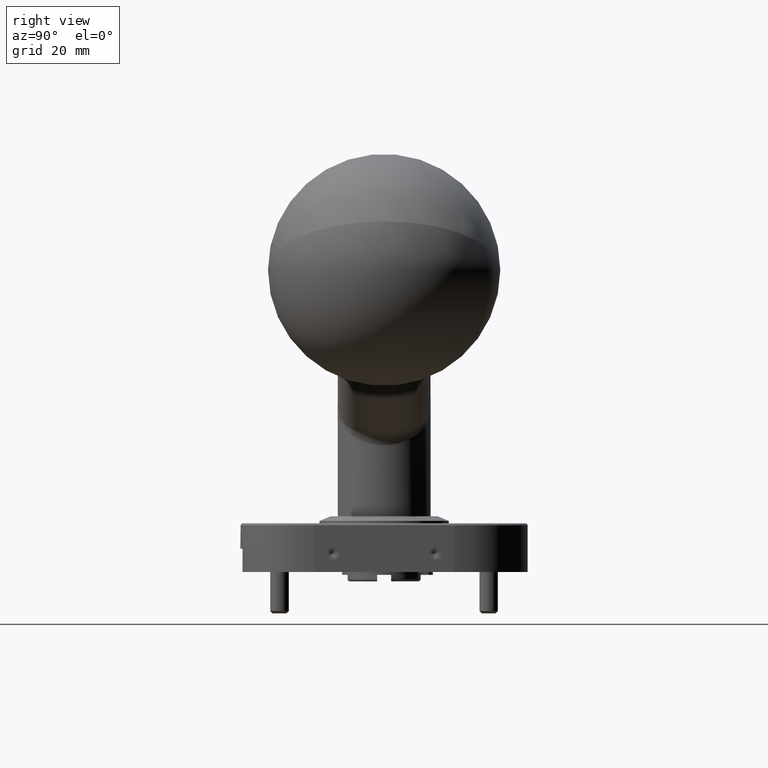
[diagram: clean part render]
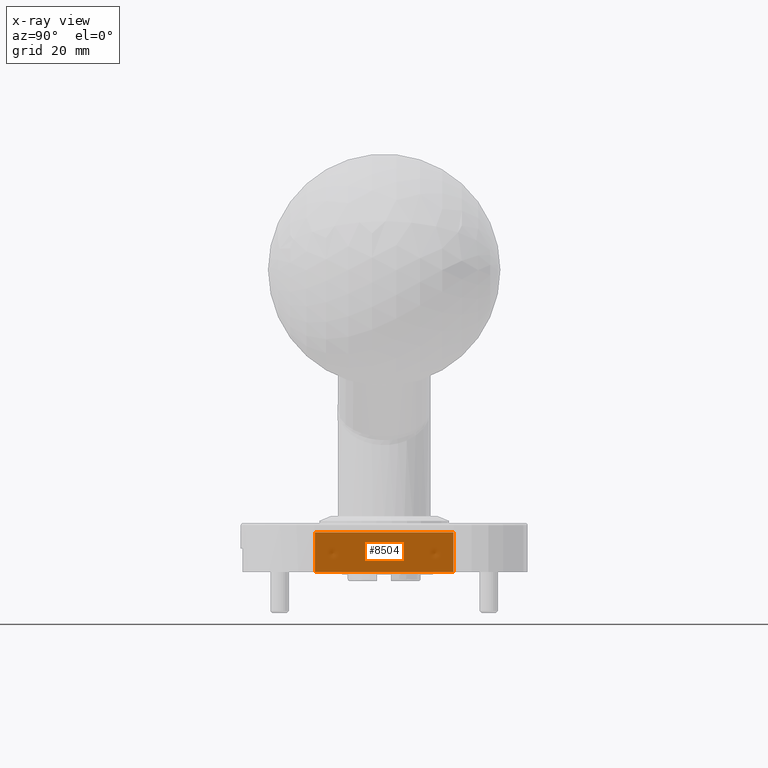
[diagram: x-ray — body ghosted, one internal face saturated and labeled with its STEP entity id]
A machine part, right view, then the same camera in x-ray: the body is ghosted and one INTERNAL B-rep face — a face not visible from any outside direction — is saturated and labeled: STEP entity #8504.
In plain terms, the highlighted planar face has unit normal (1, 0, 0).
Its self-contained STEP definition (entity closure, byte-faithful):
#1052 = VERTEX_POINT ( 'NONE', #8959 ) ;
#1175 = FACE_OUTER_BOUND ( 'NONE', #20136, .T. ) ;
#1242 = LINE ( 'NONE', #4893, #8571 ) ;
#3542 = CARTESIAN_POINT ( 'NONE',  ( -15.00000000000000500, 14.89999999999999900, 8.500000000000000000 ) ) ;
#4503 = ORIENTED_EDGE ( 'NONE', *, *, #10772, .T. ) ;
#4594 = DIRECTION ( 'NONE',  ( 0.0000000000000000000, 0.0000000000000000000, -1.000000000000000000 ) ) ;
#4893 = CARTESIAN_POINT ( 'NONE',  ( -15.00000000000000500, -14.89999999999999900, 0.0000000000000000000 ) ) ;
#5344 = VECTOR ( 'NONE', #10589, 1000.000000000000000 ) ;
#7799 = DIRECTION ( 'NONE',  ( -0.0000000000000000000, -0.0000000000000000000, -1.000000000000000000 ) ) ;
#8504 = ADVANCED_FACE ( 'NONE', ( #1175 ), #12948, .F. ) ;
#8571 = VECTOR ( 'NONE', #18143, 1000.000000000000000 ) ;
#8959 = CARTESIAN_POINT ( 'NONE',  ( -15.00000000000000500, 14.89999999999999900, 0.0000000000000000000 ) ) ;
#9434 = LINE ( 'NONE', #18572, #16357 ) ;
#9531 = LINE ( 'NONE', #13892, #5344 ) ;
#9710 = CARTESIAN_POINT ( 'NONE',  ( -15.00000000000000500, -14.89999999999999900, 9.000000000000001800 ) ) ;
#10589 = DIRECTION ( 'NONE',  ( -0.0000000000000000000, -0.0000000000000000000, -1.000000000000000000 ) ) ;
#10772 = EDGE_CURVE ( 'NONE', #18783, #15317, #9434, .T. ) ;
#11383 = DIRECTION ( 'NONE',  ( 1.000000000000000000, 0.0000000000000000000, 0.0000000000000000000 ) ) ;
#12178 = VECTOR ( 'NONE', #7799, 1000.000000000000000 ) ;
#12948 = PLANE ( 'NONE',  #13834 ) ;
#13834 = AXIS2_PLACEMENT_3D ( 'NONE', #19908, #11383, #4594 ) ;
#13892 = CARTESIAN_POINT ( 'NONE',  ( -15.00000000000000500, 14.89999999999999900, 9.000000000000001800 ) ) ;
#14421 = EDGE_CURVE ( 'NONE', #1052, #16939, #1242, .T. ) ;
#14623 = ORIENTED_EDGE ( 'NONE', *, *, #19364, .T. ) ;
#14855 = CARTESIAN_POINT ( 'NONE',  ( -15.00000000000000500, -14.89999999999999900, 0.0000000000000000000 ) ) ;
#15032 = ORIENTED_EDGE ( 'NONE', *, *, #14421, .T. ) ;
#15317 = VERTEX_POINT ( 'NONE', #3542 ) ;
#16357 = VECTOR ( 'NONE', #18425, 1000.000000000000000 ) ;
#16939 = VERTEX_POINT ( 'NONE', #14855 ) ;
#18143 = DIRECTION ( 'NONE',  ( -0.0000000000000000000, -1.000000000000000000, -0.0000000000000000000 ) ) ;
#18425 = DIRECTION ( 'NONE',  ( -0.0000000000000000000, 1.000000000000000000, -0.0000000000000000000 ) ) ;
#18507 = EDGE_CURVE ( 'NONE', #18783, #16939, #21718, .T. ) ;
#18572 = CARTESIAN_POINT ( 'NONE',  ( -15.00000000000000500, -14.89999999999999900, 8.500000000000000000 ) ) ;
#18783 = VERTEX_POINT ( 'NONE', #19146 ) ;
#19146 = CARTESIAN_POINT ( 'NONE',  ( -15.00000000000000500, -14.89999999999999900, 8.500000000000000000 ) ) ;
#19364 = EDGE_CURVE ( 'NONE', #15317, #1052, #9531, .T. ) ;
#19908 = CARTESIAN_POINT ( 'NONE',  ( -15.00000000000000500, -14.89999999999999900, 9.000000000000001800 ) ) ;
#20136 = EDGE_LOOP ( 'NONE', ( #20912, #4503, #14623, #15032 ) ) ;
#20912 = ORIENTED_EDGE ( 'NONE', *, *, #18507, .F. ) ;
#21718 = LINE ( 'NONE', #9710, #12178 ) ;